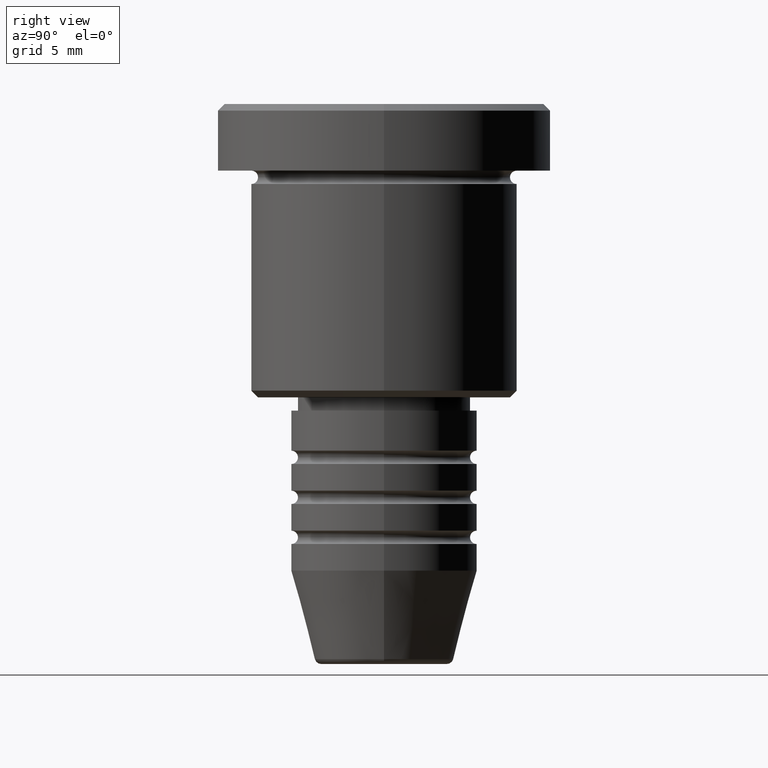
[diagram: clean part render]
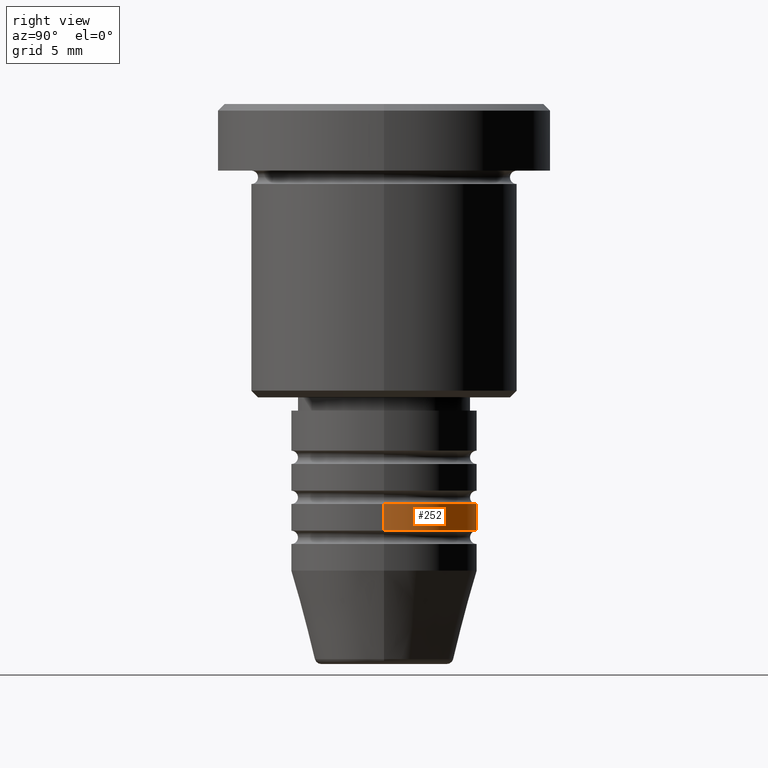
[diagram: same view with one face highlighted and labeled with its STEP entity id]
A machine part, right view. The second image highlights one B-rep face of the part: STEP entity #252.
In plain terms, the highlighted cylindrical surface (partial cylindrical patch) has radius 7 mm, axis along (-0, -0, 1).
Its self-contained STEP definition (entity closure, byte-faithful):
#34 = DIRECTION ( 'NONE',  ( -0.000000000000000000, -0.000000000000000000, 1.000000000000000000 ) ) ;
#56 = VECTOR ( 'NONE', #1131, 1000.000000000000000 ) ;
#88 = CARTESIAN_POINT ( 'NONE',  ( -7.000000000000000000, 8.572527594031473190E-16, -31.99999999999997868 ) ) ;
#252 = ADVANCED_FACE ( 'NONE', ( #435 ), #364, .T. ) ;
#267 = VECTOR ( 'NONE', #34, 1000.000000000000000 ) ;
#269 = AXIS2_PLACEMENT_3D ( 'NONE', #582, #762, #495 ) ;
#299 = ORIENTED_EDGE ( 'NONE', *, *, #832, .F. ) ;
#319 = CARTESIAN_POINT ( 'NONE',  ( 7.000000000000000000, 0.000000000000000000, 0.000000000000000000 ) ) ;
#364 = CYLINDRICAL_SURFACE ( 'NONE', #669, 7.000000000000000000 ) ;
#367 = CARTESIAN_POINT ( 'NONE',  ( 0.000000000000000000, 0.000000000000000000, -29.99999999999998224 ) ) ;
#381 = DIRECTION ( 'NONE',  ( -0.000000000000000000, -0.000000000000000000, 1.000000000000000000 ) ) ;
#414 = VERTEX_POINT ( 'NONE', #88 ) ;
#435 = FACE_OUTER_BOUND ( 'NONE', #924, .T. ) ;
#495 = DIRECTION ( 'NONE',  ( 1.000000000000000000, 0.000000000000000000, 0.000000000000000000 ) ) ;
#509 = ORIENTED_EDGE ( 'NONE', *, *, #553, .T. ) ;
#532 = DIRECTION ( 'NONE',  ( 1.000000000000000000, 0.000000000000000000, 0.000000000000000000 ) ) ;
#534 = EDGE_CURVE ( 'NONE', #538, #414, #745, .T. ) ;
#538 = VERTEX_POINT ( 'NONE', #1139 ) ;
#553 = EDGE_CURVE ( 'NONE', #414, #1147, #951, .T. ) ;
#562 = DIRECTION ( 'NONE',  ( 1.000000000000000000, 0.000000000000000000, 0.000000000000000000 ) ) ;
#582 = CARTESIAN_POINT ( 'NONE',  ( 0.000000000000000000, 0.000000000000000000, -31.99999999999997868 ) ) ;
#648 = VERTEX_POINT ( 'NONE', #1152 ) ;
#665 = CARTESIAN_POINT ( 'NONE',  ( -7.000000000000000000, 8.572527594031473190E-16, 0.000000000000000000 ) ) ;
#669 = AXIS2_PLACEMENT_3D ( 'NONE', #1076, #997, #532 ) ;
#671 = CIRCLE ( 'NONE', #937, 7.000000000000000000 ) ;
#711 = CARTESIAN_POINT ( 'NONE',  ( -7.000000000000000000, 8.572527594031473190E-16, -29.99999999999998224 ) ) ;
#745 = CIRCLE ( 'NONE', #269, 7.000000000000000000 ) ;
#762 = DIRECTION ( 'NONE',  ( -0.000000000000000000, -0.000000000000000000, 1.000000000000000000 ) ) ;
#832 = EDGE_CURVE ( 'NONE', #648, #1147, #671, .T. ) ;
#861 = LINE ( 'NONE', #319, #267 ) ;
#924 = EDGE_LOOP ( 'NONE', ( #1045, #509, #299, #983 ) ) ;
#937 = AXIS2_PLACEMENT_3D ( 'NONE', #367, #381, #562 ) ;
#951 = LINE ( 'NONE', #665, #56 ) ;
#983 = ORIENTED_EDGE ( 'NONE', *, *, #1017, .F. ) ;
#997 = DIRECTION ( 'NONE',  ( -0.000000000000000000, -0.000000000000000000, 1.000000000000000000 ) ) ;
#1017 = EDGE_CURVE ( 'NONE', #538, #648, #861, .T. ) ;
#1045 = ORIENTED_EDGE ( 'NONE', *, *, #534, .T. ) ;
#1076 = CARTESIAN_POINT ( 'NONE',  ( 0.000000000000000000, 0.000000000000000000, 0.000000000000000000 ) ) ;
#1131 = DIRECTION ( 'NONE',  ( -0.000000000000000000, -0.000000000000000000, 1.000000000000000000 ) ) ;
#1139 = CARTESIAN_POINT ( 'NONE',  ( 7.000000000000000000, 0.000000000000000000, -31.99999999999997868 ) ) ;
#1147 = VERTEX_POINT ( 'NONE', #711 ) ;
#1152 = CARTESIAN_POINT ( 'NONE',  ( 7.000000000000000000, 0.000000000000000000, -29.99999999999998224 ) ) ;